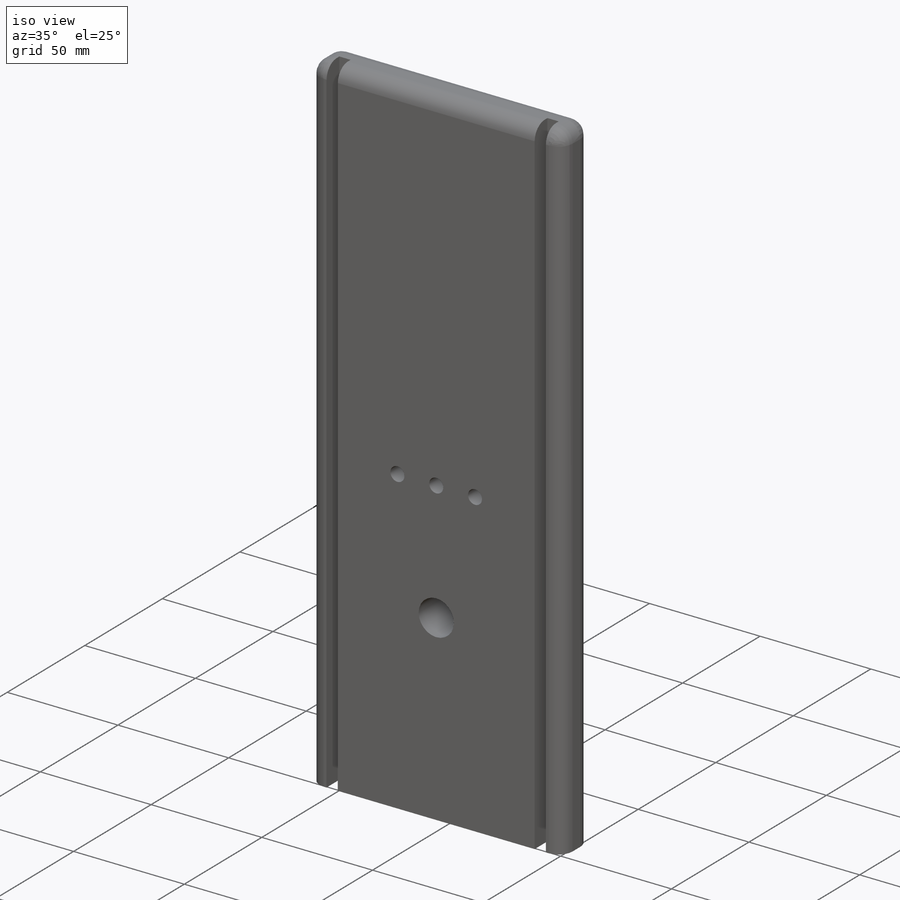
[diagram: iso view]
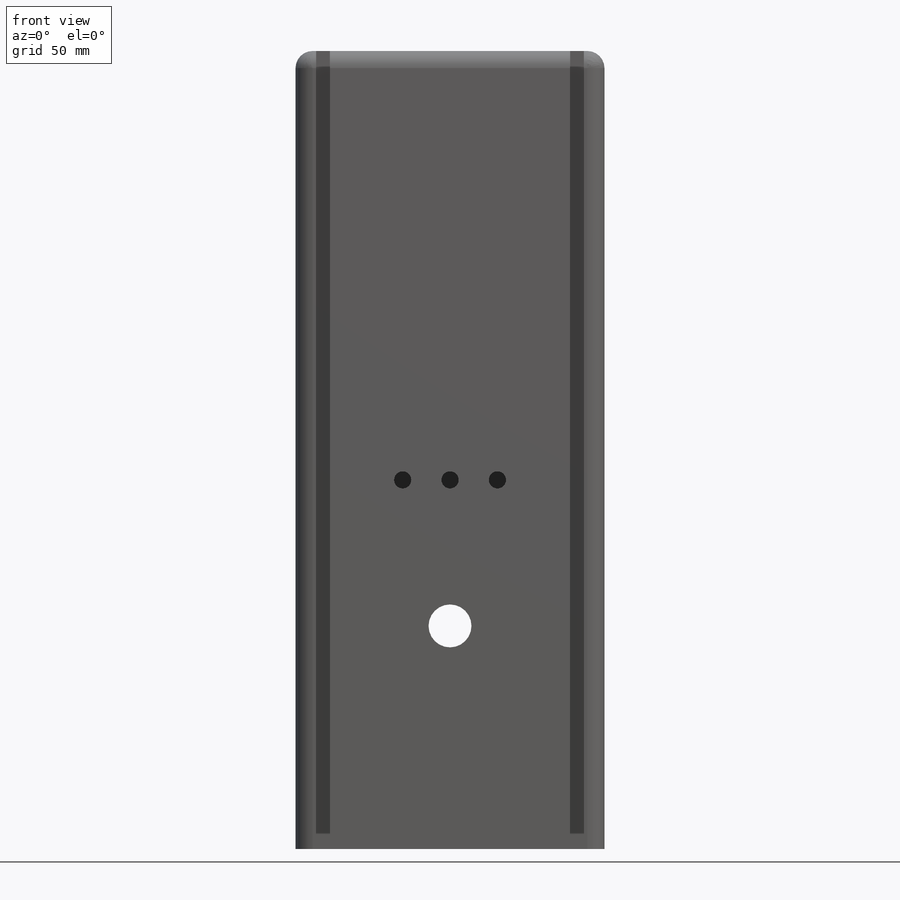
[diagram: front view]
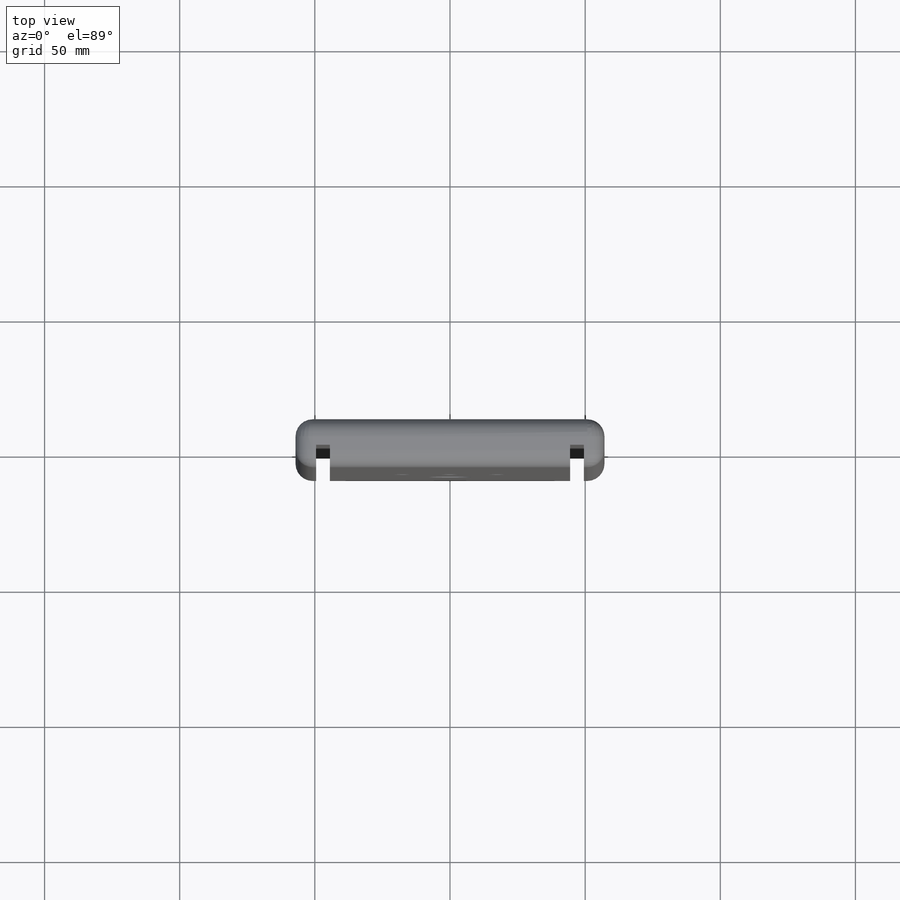
[diagram: top view]
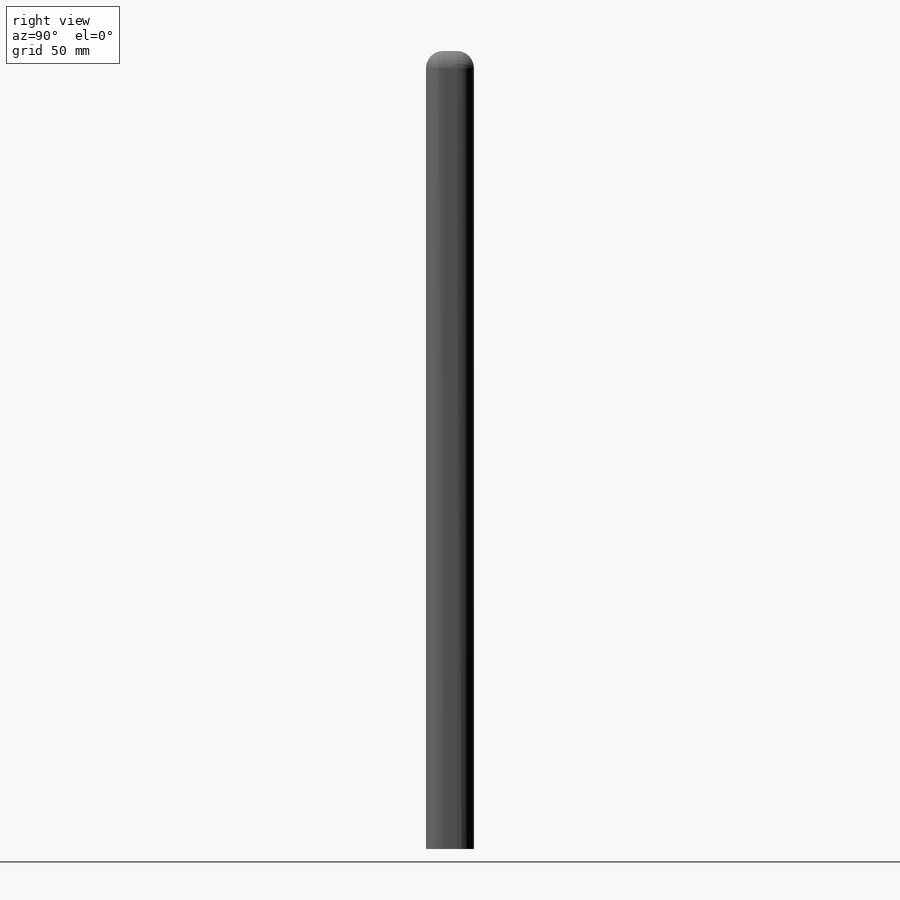
[diagram: right view]
SOLIDWORKS PART (.sldprt)
format: sldprt  version: not decoded by parser v0  size: 561,152 bytes
history: native  units: mm
features: sketch x5, cut_extrude x4, chamfer x2, material x1, extrude x1, mirror x1, fillet x1 (+12 scaffold rows collapsed)
feature tree (27):
  scaffold x12  (default folders/planes/origin — collapsed)
  material  "Oak"
  sketch  "Sketch1"  dims[c1.D4=~22.93989mm c1.D6=6.35mm c1.D1=114.3mm c1.D2=295.275mm c1.D3=158.75mm c2.D4=22.225mm c2.D5=22.225mm c2.D7=57.15mm c2.D8=34.925mm c2.D9=34.925mm]
  extrude  "Boss-Extrude1"  Depth=17.78mm
  sketch  "Sketch2"  dims[c1.D1=6.35mm c1.D2=158.75mm c1.D3=35.052mm c1.D4=35.052mm c2.D3=17.526mm c2.D4=17.526mm]
  cut_extrude  "Cut-Extrude1"  Depth=12.7mm
  sketch  "Sketch3"  dims[D1=5.08mm D2=8.255mm D3=44.45mm]
  cut_extrude  "Cut-Extrude2"  [1 undecoded]
  mirror  "Mirror1"
  sketch  "Sketch4"  dims[D1=76.2mm D2=19.05mm D3=25.4mm D4=25.4mm]
  cut_extrude  "Cut-Extrude3"  [1 undecoded]
  fillet  "Fillet1"  Radius=6.35mm
  sketch  "Sketch5"  dims[D1=15.875mm D2=82.55mm D3=57.15mm]
  cut_extrude  "Cut-Extrude4"  [1 undecoded]
  chamfer  "Chamfer1"  Distance=12.7mm
  chamfer  "Chamfer2"  Distance=19.05mm Angle=30deg
decode coverage: 10 of 14 modeling features carry decoded parameters
note: ~ marks probable driven/reference dimensions
note: 3 parameter values undecoded
summary: no parameter record found for 3 features
note: suppression state not decoded; provenance and decode notes live in map.json
